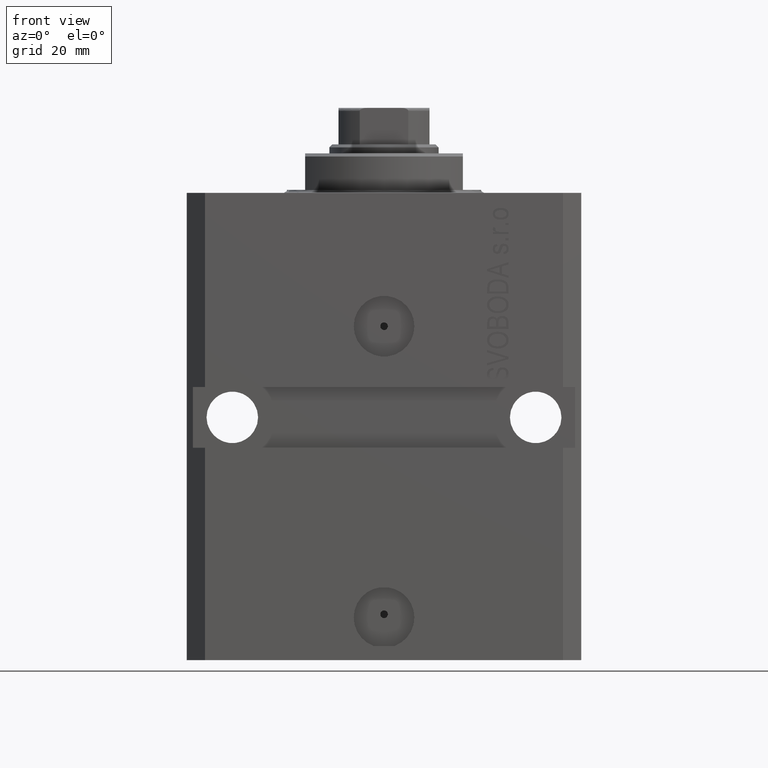
[diagram: clean part render]
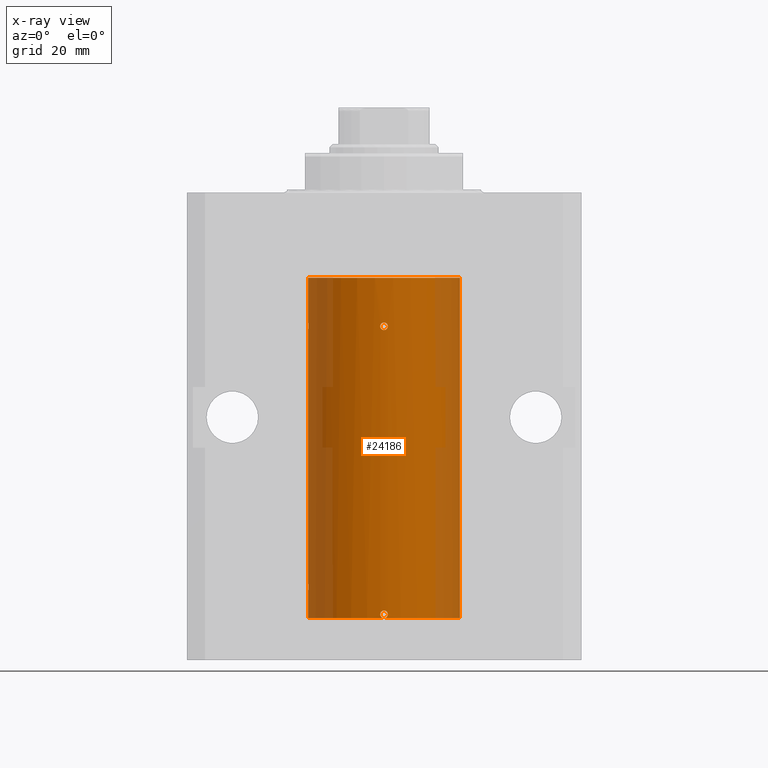
[diagram: x-ray — body ghosted, one internal face saturated and labeled with its STEP entity id]
A machine part, front view, then the same camera in x-ray: the body is ghosted and one INTERNAL B-rep face — a face not visible from any outside direction — is saturated and labeled: STEP entity #24186.
In plain terms, the highlighted cylindrical surface (partial cylindrical patch) has radius 12.5 mm, axis along (0, 0, 1).
Its self-contained STEP definition (entity closure, byte-faithful):
#8 = B_SPLINE_CURVE_WITH_KNOTS ( 'NONE', 3,
 ( #38443, #1130, #14831, #10416, #14614, #42470, #21796, #20531, #38881, #41214 ),
 .UNSPECIFIED., .F., .F.,
 ( 4, 2, 2, 2, 4 ),
 ( 0.001954339881912776130, 0.002442813509249222061, 0.002931287136585667558, 0.003419760763922113488, 0.003908234391258559419 ),
 .UNSPECIFIED. ) ;
#281 = VERTEX_POINT ( 'NONE', #12729 ) ;
#339 = DIRECTION ( 'NONE',  ( -0.000000000000000000, -0.000000000000000000, 1.000000000000000000 ) ) ;
#719 = ORIENTED_EDGE ( 'NONE', *, *, #12572, .T. ) ;
#911 = CARTESIAN_POINT ( 'NONE',  ( -12.50000000000017941, 3.883381774819353300E-13, -65.62500000000359535 ) ) ;
#1130 = CARTESIAN_POINT ( 'NONE',  ( -12.50000000000000178, -0.1631389274720966009, -22.62500000000016698 ) ) ;
#1272 = CARTESIAN_POINT ( 'NONE',  ( -0.6249999999998608891, -12.48436522214887034, -21.83682388509806316 ) ) ;
#1643 = DIRECTION ( 'NONE',  ( -0.000000000000000000, -0.000000000000000000, 1.000000000000000000 ) ) ;
#2241 = CARTESIAN_POINT ( 'NONE',  ( 0.3151108292487665996, -12.49625698805480845, -70.02093695688176922 ) ) ;
#2644 = LINE ( 'NONE', #9397, #4766 ) ;
#2676 = CARTESIAN_POINT ( 'NONE',  ( -0.5571821530518563659, -12.48810851326189031, -69.14827784464195304 ) ) ;
#2832 = CIRCLE ( 'NONE', #40172, 12.50000000000000000 ) ;
#2915 = CARTESIAN_POINT ( 'NONE',  ( 0.08262306818364176242, -12.50000000000000000, -70.09999999999999432 ) ) ;
#3325 = CARTESIAN_POINT ( 'NONE',  ( -12.48437204107163190, -0.6248637920779611665, -65.16542285240649335 ) ) ;
#3755 = EDGE_CURVE ( 'NONE', #41760, #32724, #12750, .T. ) ;
#3839 = CARTESIAN_POINT ( 'NONE',  ( -0.1650848372272839815, -12.50000000000000178, -70.10000000000000853 ) ) ;
#4356 = DIRECTION ( 'NONE',  ( 1.000000000000000000, 0.000000000000000000, 0.000000000000000000 ) ) ;
#4537 = VERTEX_POINT ( 'NONE', #28956 ) ;
#4566 = DIRECTION ( 'NONE',  ( 0.000000000000000000, 0.000000000000000000, 1.000000000000000000 ) ) ;
#4766 = VECTOR ( 'NONE', #19510, 1000.000000000000000 ) ;
#5388 = CARTESIAN_POINT ( 'NONE',  ( 12.50000000000000000, 0.000000000000000000, -70.09999999999999432 ) ) ;
#5390 = CARTESIAN_POINT ( 'NONE',  ( 0.5573988467447082984, -12.48809900631781034, -69.80140147935480854 ) ) ;
#5543 = ORIENTED_EDGE ( 'NONE', *, *, #10539, .T. ) ;
#5756 = CARTESIAN_POINT ( 'NONE',  ( -0.3834811789276724170, -12.49425278195415423, -21.49962372461870785 ) ) ;
#5991 = CARTESIAN_POINT ( 'NONE',  ( 1.470104640658484994E-15, -12.50000000000000000, -70.09999999999999432 ) ) ;
#6182 = CARTESIAN_POINT ( 'NONE',  ( -12.50000000000000000, 1.530808498934191521E-15, -70.09999999999999432 ) ) ;
#7078 = CIRCLE ( 'NONE', #25648, 12.50000000000000000 ) ;
#8228 = CARTESIAN_POINT ( 'NONE',  ( -0.08132084456756884239, -12.50000145133807550, -21.37497097323671014 ) ) ;
#8759 = CARTESIAN_POINT ( 'NONE',  ( 0.6249999999998496758, -12.48436522214886857, -69.39345217010018985 ) ) ;
#9123 = CARTESIAN_POINT ( 'NONE',  ( 0.6250000000000017764, -12.48436522214886502, -22.00000000000000000 ) ) ;
#9397 = CARTESIAN_POINT ( 'NONE',  ( 12.50000000000000000, 0.000000000000000000, -70.09999999999999432 ) ) ;
#9427 = CYLINDRICAL_SURFACE ( 'NONE', #10326, 12.50000000000000000 ) ;
#9510 = EDGE_LOOP ( 'NONE', ( #17764, #42666, #39651, #31281, #28857, #15978, #719, #29501, #16917, #5543, #12631, #34127 ) ) ;
#9521 = CARTESIAN_POINT ( 'NONE',  ( -0.6250000000000026645, -12.48436522214885969, -69.63984350486184383 ) ) ;
#9640 = DIRECTION ( 'NONE',  ( -0.000000000000000000, -0.000000000000000000, 1.000000000000000000 ) ) ;
#10314 = CARTESIAN_POINT ( 'NONE',  ( 0.000000000000000000, 0.000000000000000000, -70.09999999999999432 ) ) ;
#10326 = AXIS2_PLACEMENT_3D ( 'NONE', #10314, #9640, #16396 ) ;
#10416 = CARTESIAN_POINT ( 'NONE',  ( -12.48811925907523879, -0.5569488909189486137, -22.32709604503179079 ) ) ;
#10469 = DIRECTION ( 'NONE',  ( 0.000000000000000000, 0.000000000000000000, 1.000000000000000000 ) ) ;
#10539 = EDGE_CURVE ( 'NONE', #37885, #34957, #24374, .T. ) ;
#11447 = CARTESIAN_POINT ( 'NONE',  ( 12.50000000000000000, 0.000000000000000000, -13.99999999999999822 ) ) ;
#11600 = CARTESIAN_POINT ( 'NONE',  ( -0.6250000000036063375, -12.48436522214868383, -21.99999999999969447 ) ) ;
#11967 = DIRECTION ( 'NONE',  ( -0.000000000000000000, -0.000000000000000000, 1.000000000000000000 ) ) ;
#12129 = CARTESIAN_POINT ( 'NONE',  ( 0.1636982395582734229, -12.49915742890632053, -70.08372397847031721 ) ) ;
#12532 = CARTESIAN_POINT ( 'NONE',  ( -12.50000000000017941, 3.883381646606358354E-13, -22.62500000000358824 ) ) ;
#12538 = CARTESIAN_POINT ( 'NONE',  ( 0.5570667809667051440, -12.48811511264091934, -22.32697951956172844 ) ) ;
#12572 = EDGE_CURVE ( 'NONE', #17412, #42302, #2832, .T. ) ;
#12631 = ORIENTED_EDGE ( 'NONE', *, *, #24184, .T. ) ;
#12664 = CARTESIAN_POINT ( 'NONE',  ( 1.470104640658484994E-15, -12.50000000000000000, -70.09999999999999432 ) ) ;
#12729 = CARTESIAN_POINT ( 'NONE',  ( -12.50000000000000000, 1.530808498934191521E-15, -70.09999999999999432 ) ) ;
#12750 = B_SPLINE_CURVE_WITH_KNOTS ( 'NONE', 3,
 ( #39962, #13210, #16370, #19962, #32777, #23335, #22437, #12538, #33005, #15700 ),
 .UNSPECIFIED., .F., .F.,
 ( 4, 2, 2, 2, 4 ),
 ( 0.001954339857564081195, 0.002442813476812580147, 0.002931287096061078665, 0.003419760715309577617, 0.003908234334558076568 ),
 .UNSPECIFIED. ) ;
#13015 = CARTESIAN_POINT ( 'NONE',  ( 1.470104640658484994E-15, -12.50000000000000000, -70.09999999999999432 ) ) ;
#13210 = CARTESIAN_POINT ( 'NONE',  ( -0.6250000000001363354, -12.48436522214885258, -22.16313892819009013 ) ) ;
#13330 = CARTESIAN_POINT ( 'NONE',  ( -0.5573321180046024725, -12.48810161786719242, -69.80148238604530775 ) ) ;
#13457 = CARTESIAN_POINT ( 'NONE',  ( -0.6250000000000027756, -12.48436522214886502, -69.31002761350272579 ) ) ;
#13622 = CARTESIAN_POINT ( 'NONE',  ( 0.000000000000000000, 0.000000000000000000, -70.09999999999999432 ) ) ;
#13685 = CARTESIAN_POINT ( 'NONE',  ( -0.6250000000000025535, -12.48436522214886324, -69.47499999999999432 ) ) ;
#14614 = CARTESIAN_POINT ( 'NONE',  ( -12.48437204107163190, -0.6248637920779505084, -22.16542285240648624 ) ) ;
#14782 = B_SPLINE_CURVE_WITH_KNOTS ( 'NONE', 3,
 ( #37269, #16599, #34115, #33896, #3325, #30293, #17038, #41082, #16821, #43996 ),
 .UNSPECIFIED., .F., .F.,
 ( 4, 2, 2, 2, 4 ),
 ( 0.001954339881912786538, 0.002442813509249238107, 0.002931287136585690109, 0.003419760763922141678, 0.003908234391258593246 ),
 .UNSPECIFIED. ) ;
#14831 = CARTESIAN_POINT ( 'NONE',  ( -12.49627279065598628, -0.3263143231498885077, -22.55740725890368736 ) ) ;
#14973 = CARTESIAN_POINT ( 'NONE',  ( 0.6087318085567836601, -12.48520854404103630, -21.83633981484414122 ) ) ;
#14998 = EDGE_CURVE ( 'NONE', #16546, #37885, #35950, .T. ) ;
#15700 = CARTESIAN_POINT ( 'NONE',  ( 0.6250000000000017764, -12.48436522214886502, -22.00000000000000000 ) ) ;
#15978 = ORIENTED_EDGE ( 'NONE', *, *, #34342, .T. ) ;
#16370 = CARTESIAN_POINT ( 'NONE',  ( -0.5574072998201419216, -12.48809731436987747, -22.32631425440896322 ) ) ;
#16396 = DIRECTION ( 'NONE',  ( 1.000000000000000000, 0.000000000000000000, 0.000000000000000000 ) ) ;
#16546 = VERTEX_POINT ( 'NONE', #42581 ) ;
#16599 = CARTESIAN_POINT ( 'NONE',  ( -12.50000000000000178, -0.1631389274720982940, -65.62500000000014211 ) ) ;
#16821 = CARTESIAN_POINT ( 'NONE',  ( -12.50000000000000178, -0.1651708725692960789, -64.37500000000000000 ) ) ;
#16917 = ORIENTED_EDGE ( 'NONE', *, *, #24653, .F. ) ;
#17038 = CARTESIAN_POINT ( 'NONE',  ( -12.48809300548636081, -0.5575284115737590973, -64.67380822970859811 ) ) ;
#17412 = VERTEX_POINT ( 'NONE', #29218 ) ;
#17764 = ORIENTED_EDGE ( 'NONE', *, *, #37132, .F. ) ;
#18975 = CARTESIAN_POINT ( 'NONE',  ( 0.000000000000000000, 0.000000000000000000, -70.09999999999999432 ) ) ;
#19234 = VECTOR ( 'NONE', #11967, 1000.000000000000000 ) ;
#19510 = DIRECTION ( 'NONE',  ( -0.000000000000000000, -0.000000000000000000, 1.000000000000000000 ) ) ;
#19543 = FACE_OUTER_BOUND ( 'NONE', #9510, .T. ) ;
#19872 = CARTESIAN_POINT ( 'NONE',  ( -12.50000000000000000, -2.089494013101375120E-17, -21.37499999999999645 ) ) ;
#19962 = CARTESIAN_POINT ( 'NONE',  ( -0.3270961104548176790, -12.49625086038168931, -22.55694885317108600 ) ) ;
#20087 = CARTESIAN_POINT ( 'NONE',  ( -0.6250000000000025535, -12.48436522214886324, -69.47499999999999432 ) ) ;
#20531 = CARTESIAN_POINT ( 'NONE',  ( -12.49625500642808262, -0.3269795983092943503, -21.44293326880232087 ) ) ;
#21796 = CARTESIAN_POINT ( 'NONE',  ( -12.48809300548636081, -0.5575284115737433321, -21.67380822970859811 ) ) ;
#22157 = CARTESIAN_POINT ( 'NONE',  ( 0.6250000000000017764, -12.48436522214886502, -22.00000000000000000 ) ) ;
#22437 = CARTESIAN_POINT ( 'NONE',  ( 0.3261918319691095580, -12.49627709975190015, -22.55752837903201424 ) ) ;
#22457 = CARTESIAN_POINT ( 'NONE',  ( 0.6087772866342635592, -12.48520622767670574, -69.31152541805840883 ) ) ;
#22607 = CARTESIAN_POINT ( 'NONE',  ( 0.3265259744707224576, -12.49626742995426376, -21.44268445620963348 ) ) ;
#22834 = CARTESIAN_POINT ( 'NONE',  ( 0.4995290477189069378, -12.49014813577965732, -21.61562461405073421 ) ) ;
#23036 = CARTESIAN_POINT ( 'NONE',  ( -0.6250000000036063375, -12.48436522214868383, -21.99999999999969447 ) ) ;
#23238 = CARTESIAN_POINT ( 'NONE',  ( -0.3268155536464903976, -12.49625914831439921, -70.03213681627768494 ) ) ;
#23335 = CARTESIAN_POINT ( 'NONE',  ( 0.1643920345763580093, -12.50000678895248107, -22.62513577909574636 ) ) ;
#24184 = EDGE_CURVE ( 'NONE', #34957, #16546, #42164, .T. ) ;
#24186 = ADVANCED_FACE ( 'NONE', ( #40215, #19543 ), #9427, .F. ) ;
#24374 = B_SPLINE_CURVE_WITH_KNOTS ( 'NONE', 3,
 ( #13015, #2915, #12129, #2241, #33032, #5390, #40440, #43577 ),
 .UNSPECIFIED., .F., .F.,
 ( 4, 2, 2, 4 ),
 ( 0.000000000000000000, 0.0002443481056286064194, 0.0004886962112572128389, 0.0009773924225144256777 ),
 .UNSPECIFIED. ) ;
#24409 = DIRECTION ( 'NONE',  ( 1.000000000000000000, 0.000000000000000000, 0.000000000000000000 ) ) ;
#24653 = EDGE_CURVE ( 'NONE', #37885, #43237, #44036, .T. ) ;
#25416 = EDGE_CURVE ( 'NONE', #42271, #4537, #14782, .T. ) ;
#25648 = AXIS2_PLACEMENT_3D ( 'NONE', #18975, #29304, #43012 ) ;
#26026 = CARTESIAN_POINT ( 'NONE',  ( 0.6250000000080512264, -12.48436522214846001, -69.47499999999922693 ) ) ;
#26205 = CARTESIAN_POINT ( 'NONE',  ( 0.5459720203952235229, -12.48811039973180748, -21.68495456851491454 ) ) ;
#26364 = EDGE_CURVE ( 'NONE', #32724, #41760, #39381, .T. ) ;
#28250 = AXIS2_PLACEMENT_3D ( 'NONE', #13622, #10469, #24409 ) ;
#28510 = ORIENTED_EDGE ( 'NONE', *, *, #26364, .T. ) ;
#28857 = ORIENTED_EDGE ( 'NONE', *, *, #43158, .T. ) ;
#28956 = CARTESIAN_POINT ( 'NONE',  ( -12.50000000000000000, -1.053276923642966949E-14, -64.37500000000000000 ) ) ;
#29218 = CARTESIAN_POINT ( 'NONE',  ( -12.50000000000000000, 1.530808498934191521E-15, -13.99999999999999822 ) ) ;
#29304 = DIRECTION ( 'NONE',  ( 0.000000000000000000, 0.000000000000000000, 1.000000000000000000 ) ) ;
#29501 = ORIENTED_EDGE ( 'NONE', *, *, #31758, .F. ) ;
#29861 = CARTESIAN_POINT ( 'NONE',  ( 0.5002336959535146343, -12.49012317397092886, -69.09133113277157179 ) ) ;
#30293 = CARTESIAN_POINT ( 'NONE',  ( -12.48435842450557942, -0.6251357828645015546, -64.83560799371397820 ) ) ;
#31281 = ORIENTED_EDGE ( 'NONE', *, *, #35307, .T. ) ;
#31537 = CARTESIAN_POINT ( 'NONE',  ( 0.000000000000000000, 0.000000000000000000, -13.99999999999999822 ) ) ;
#31758 = EDGE_CURVE ( 'NONE', #43237, #42302, #2644, .T. ) ;
#31972 = LINE ( 'NONE', #42748, #19234 ) ;
#32437 = CARTESIAN_POINT ( 'NONE',  ( -12.50000000000000000, 1.530808498934191521E-15, -70.09999999999999432 ) ) ;
#32724 = VERTEX_POINT ( 'NONE', #22157 ) ;
#32777 = CARTESIAN_POINT ( 'NONE',  ( -0.1654228519529012675, -12.49999318979582874, -22.62486379587040020 ) ) ;
#32895 = ORIENTED_EDGE ( 'NONE', *, *, #3755, .T. ) ;
#32950 = CARTESIAN_POINT ( 'NONE',  ( -0.1632543323367347532, -12.49916307336598287, -21.39116441262433099 ) ) ;
#33005 = CARTESIAN_POINT ( 'NONE',  ( 0.6250000000000018874, -12.48436522214886502, -22.16517087750612092 ) ) ;
#33032 = CARTESIAN_POINT ( 'NONE',  ( 0.3844519291904487934, -12.49421963472024188, -69.97447303647051342 ) ) ;
#33896 = CARTESIAN_POINT ( 'NONE',  ( -12.48811925907523879, -0.5569488909189596049, -65.32709604503179435 ) ) ;
#34115 = CARTESIAN_POINT ( 'NONE',  ( -12.49627279065598628, -0.3263143231498935593, -65.55740725890372289 ) ) ;
#34127 = ORIENTED_EDGE ( 'NONE', *, *, #14998, .T. ) ;
#34342 = EDGE_CURVE ( 'NONE', #38265, #17412, #35805, .T. ) ;
#34957 = VERTEX_POINT ( 'NONE', #26026 ) ;
#35307 = EDGE_CURVE ( 'NONE', #4537, #41573, #44154, .T. ) ;
#35805 = LINE ( 'NONE', #32437, #37851 ) ;
#35868 = EDGE_LOOP ( 'NONE', ( #28510, #32895 ) ) ;
#35950 = B_SPLINE_CURVE_WITH_KNOTS ( 'NONE', 3,
 ( #20087, #9521, #13330, #23238, #3839, #12664 ),
 .UNSPECIFIED., .F., .F.,
 ( 4, 2, 4 ),
 ( 0.002931796015602113753, 0.003420015203430352198, 0.003908234391258590644 ),
 .UNSPECIFIED. ) ;
#36175 = CARTESIAN_POINT ( 'NONE',  ( 0.5460961315382516501, -12.48810487413754444, -69.16017824283937898 ) ) ;
#36320 = CARTESIAN_POINT ( 'NONE',  ( -0.5585674314229008841, -12.48806005752685344, -21.67463197640445571 ) ) ;
#36545 = CARTESIAN_POINT ( 'NONE',  ( 0.1633100384313375397, -12.49999709136798032, -21.37505817264410979 ) ) ;
#37132 = EDGE_CURVE ( 'NONE', #281, #37885, #7078, .T. ) ;
#37269 = CARTESIAN_POINT ( 'NONE',  ( -12.50000000000017941, 3.883381774819353300E-13, -65.62500000000359535 ) ) ;
#37851 = VECTOR ( 'NONE', #1643, 1000.000000000000000 ) ;
#37885 = VERTEX_POINT ( 'NONE', #5991 ) ;
#38265 = VERTEX_POINT ( 'NONE', #19872 ) ;
#38443 = CARTESIAN_POINT ( 'NONE',  ( -12.50000000000017941, 3.883381646606358354E-13, -22.62500000000358824 ) ) ;
#38881 = CARTESIAN_POINT ( 'NONE',  ( -12.50000000000000178, -0.1651708725692886126, -21.37499999999999645 ) ) ;
#39018 = CARTESIAN_POINT ( 'NONE',  ( -0.3146137485037712733, -12.49626935132541306, -21.45378489701016633 ) ) ;
#39209 = EDGE_CURVE ( 'NONE', #281, #42271, #31972, .T. ) ;
#39381 = B_SPLINE_CURVE_WITH_KNOTS ( 'NONE', 3,
 ( #9123, #39909, #14973, #26205, #22834, #22607, #36545, #8228, #32950, #39018, #5756, #36320, #1272, #11600 ),
 .UNSPECIFIED., .F., .F.,
 ( 4, 2, 2, 2, 2, 2, 4 ),
 ( 0.000000000000000000, 0.0002442924821955120467, 0.0004885849643910240934, 0.0009771699287820408142, 0.001221462410977549283, 0.001465754893173057318, 0.001954339857564081195 ),
 .UNSPECIFIED. ) ;
#39548 = CARTESIAN_POINT ( 'NONE',  ( 0.6250000000080512264, -12.48436522214846001, -69.47499999999922693 ) ) ;
#39651 = ORIENTED_EDGE ( 'NONE', *, *, #25416, .T. ) ;
#39909 = CARTESIAN_POINT ( 'NONE',  ( 0.6250000000000018874, -12.48436522214886324, -21.91739573630514926 ) ) ;
#39962 = CARTESIAN_POINT ( 'NONE',  ( -0.6250000000036063375, -12.48436522214868383, -21.99999999999969447 ) ) ;
#40172 = AXIS2_PLACEMENT_3D ( 'NONE', #31537, #4566, #4356 ) ;
#40215 = FACE_BOUND ( 'NONE', #35868, .T. ) ;
#40435 = CARTESIAN_POINT ( 'NONE',  ( -0.3266214369556185715, -12.49626442692393979, -68.91775879961872420 ) ) ;
#40440 = CARTESIAN_POINT ( 'NONE',  ( 0.6250000000003167466, -12.48436522214884725, -69.63812747540310966 ) ) ;
#40886 = CARTESIAN_POINT ( 'NONE',  ( 0.1629224624750973960, -12.50000332393458891, -68.84993352130271660 ) ) ;
#41082 = CARTESIAN_POINT ( 'NONE',  ( -12.49625500642808262, -0.3269795983093126690, -64.44293326880233508 ) ) ;
#41108 = CARTESIAN_POINT ( 'NONE',  ( 0.3251408448057629963, -12.49631649875954764, -68.91629557722380639 ) ) ;
#41214 = CARTESIAN_POINT ( 'NONE',  ( -12.50000000000000000, -2.089494013101375120E-17, -21.37499999999999645 ) ) ;
#41573 = VERTEX_POINT ( 'NONE', #12532 ) ;
#41760 = VERTEX_POINT ( 'NONE', #23036 ) ;
#42164 = B_SPLINE_CURVE_WITH_KNOTS ( 'NONE', 3,
 ( #39548, #8759, #22457, #36175, #29861, #41108, #40886, #43571, #40435, #2676, #13457, #13685 ),
 .UNSPECIFIED., .F., .F.,
 ( 4, 2, 2, 2, 2, 4 ),
 ( 0.0009773924225144256777, 0.001221692871650375710, 0.001465993320786325958, 0.001954594219058255079, 0.002443195117330184199, 0.002931796015602113753 ),
 .UNSPECIFIED. ) ;
#42271 = VERTEX_POINT ( 'NONE', #911 ) ;
#42302 = VERTEX_POINT ( 'NONE', #11447 ) ;
#42470 = CARTESIAN_POINT ( 'NONE',  ( -12.48435842450557942, -0.6251357828644855674, -21.83560799371398886 ) ) ;
#42581 = CARTESIAN_POINT ( 'NONE',  ( -0.6250000000000025535, -12.48436522214886324, -69.47499999999999432 ) ) ;
#42666 = ORIENTED_EDGE ( 'NONE', *, *, #39209, .T. ) ;
#42748 = CARTESIAN_POINT ( 'NONE',  ( -12.50000000000000000, 1.530808498934191521E-15, -70.09999999999999432 ) ) ;
#42900 = VECTOR ( 'NONE', #339, 1000.000000000000000 ) ;
#43012 = DIRECTION ( 'NONE',  ( 1.000000000000000000, 0.000000000000000000, 0.000000000000000000 ) ) ;
#43158 = EDGE_CURVE ( 'NONE', #41573, #38265, #8, .T. ) ;
#43237 = VERTEX_POINT ( 'NONE', #5388 ) ;
#43571 = CARTESIAN_POINT ( 'NONE',  ( -0.1634321124498647193, -12.49999667087055499, -68.85006658259450774 ) ) ;
#43577 = CARTESIAN_POINT ( 'NONE',  ( 0.6250000000080512264, -12.48436522214846001, -69.47499999999922693 ) ) ;
#43996 = CARTESIAN_POINT ( 'NONE',  ( -12.50000000000000000, -1.053276923642966949E-14, -64.37500000000000000 ) ) ;
#44036 = CIRCLE ( 'NONE', #28250, 12.50000000000000000 ) ;
#44154 = LINE ( 'NONE', #6182, #42900 ) ;